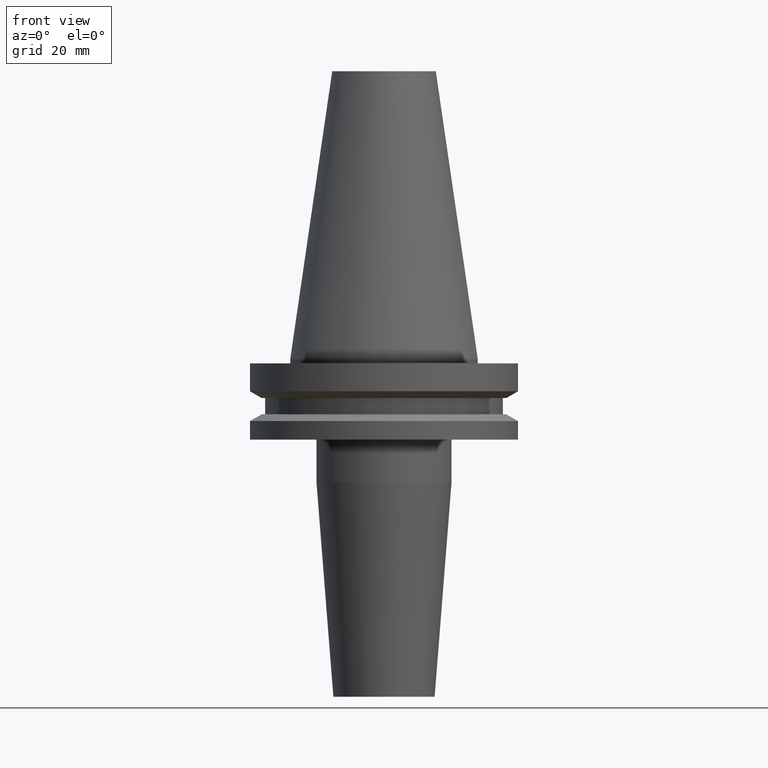
[diagram: clean part render]
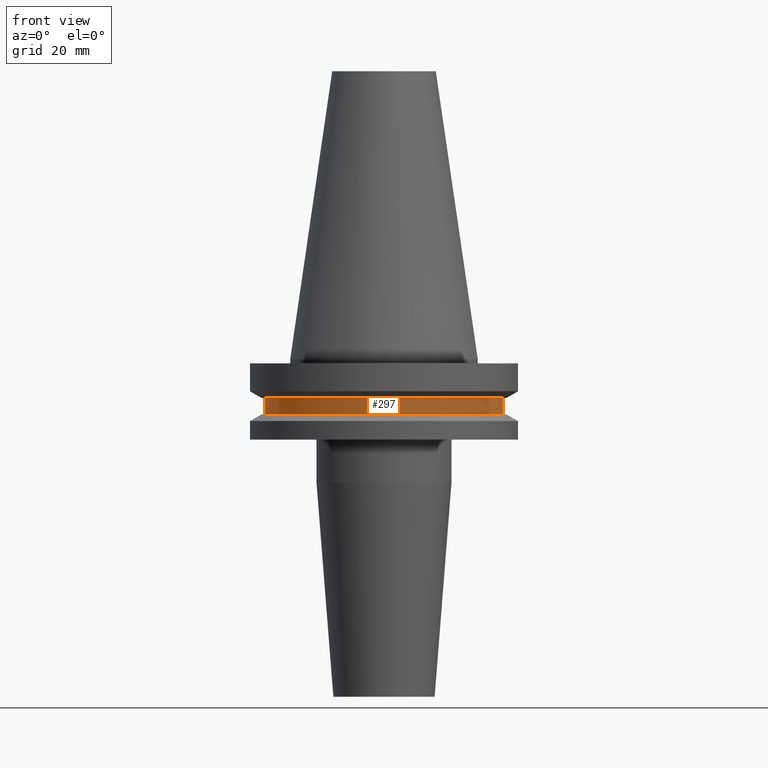
[diagram: same view with one face highlighted and labeled with its STEP entity id]
A machine part, front view. The second image highlights one B-rep face of the part: STEP entity #297.
In plain terms, the highlighted cylindrical surface (partial cylindrical patch) has radius 28.18 mm, axis along (-0, -0, 1).
Its self-contained STEP definition (entity closure, byte-faithful):
#11 = VECTOR ( 'NONE', #24, 1000.000000000000000 ) ;
#18 = EDGE_CURVE ( 'NONE', #686, #191, #608, .T. ) ;
#24 = DIRECTION ( 'NONE',  ( -0.000000000000000000, -0.000000000000000000, 1.000000000000000000 ) ) ;
#33 = CARTESIAN_POINT ( 'NONE',  ( -28.17999999999999972, 3.451054679997241634E-15, -13.05499999999999794 ) ) ;
#44 = FACE_OUTER_BOUND ( 'NONE', #72, .T. ) ;
#52 = ORIENTED_EDGE ( 'NONE', *, *, #341, .T. ) ;
#72 = EDGE_LOOP ( 'NONE', ( #751, #534, #52, #252 ) ) ;
#108 = VECTOR ( 'NONE', #596, 1000.000000000000000 ) ;
#120 = DIRECTION ( 'NONE',  ( -0.000000000000000000, -0.000000000000000000, 1.000000000000000000 ) ) ;
#191 = VERTEX_POINT ( 'NONE', #512 ) ;
#197 = CARTESIAN_POINT ( 'NONE',  ( 0.000000000000000000, 0.000000000000000000, -9.204999999999991189 ) ) ;
#203 = VERTEX_POINT ( 'NONE', #33 ) ;
#213 = DIRECTION ( 'NONE',  ( 1.000000000000000000, 0.000000000000000000, 0.000000000000000000 ) ) ;
#237 = CYLINDRICAL_SURFACE ( 'NONE', #694, 28.17999999999999972 ) ;
#252 = ORIENTED_EDGE ( 'NONE', *, *, #18, .F. ) ;
#257 = CARTESIAN_POINT ( 'NONE',  ( 0.000000000000000000, 0.000000000000000000, 68.25000000000000000 ) ) ;
#279 = DIRECTION ( 'NONE',  ( -0.000000000000000000, -0.000000000000000000, 1.000000000000000000 ) ) ;
#297 = ADVANCED_FACE ( 'NONE', ( #44 ), #237, .T. ) ;
#341 = EDGE_CURVE ( 'NONE', #406, #191, #482, .T. ) ;
#356 = CARTESIAN_POINT ( 'NONE',  ( 28.17999999999999972, 0.000000000000000000, 68.25000000000000000 ) ) ;
#372 = CARTESIAN_POINT ( 'NONE',  ( 0.000000000000000000, 0.000000000000000000, -13.05499999999999794 ) ) ;
#406 = VERTEX_POINT ( 'NONE', #550 ) ;
#471 = EDGE_CURVE ( 'NONE', #203, #686, #725, .T. ) ;
#478 = EDGE_CURVE ( 'NONE', #203, #406, #480, .T. ) ;
#480 = CIRCLE ( 'NONE', #678, 28.17999999999999972 ) ;
#482 = LINE ( 'NONE', #356, #108 ) ;
#483 = AXIS2_PLACEMENT_3D ( 'NONE', #197, #661, #548 ) ;
#489 = DIRECTION ( 'NONE',  ( 1.000000000000000000, 0.000000000000000000, 0.000000000000000000 ) ) ;
#512 = CARTESIAN_POINT ( 'NONE',  ( 28.17999999999999972, 0.000000000000000000, -9.204999999999991189 ) ) ;
#534 = ORIENTED_EDGE ( 'NONE', *, *, #478, .T. ) ;
#545 = CARTESIAN_POINT ( 'NONE',  ( -28.17999999999999972, 3.451054679997241634E-15, -9.204999999999991189 ) ) ;
#548 = DIRECTION ( 'NONE',  ( 1.000000000000000000, 0.000000000000000000, 0.000000000000000000 ) ) ;
#550 = CARTESIAN_POINT ( 'NONE',  ( 28.17999999999999972, 0.000000000000000000, -13.05499999999999794 ) ) ;
#561 = CARTESIAN_POINT ( 'NONE',  ( -28.17999999999999972, 3.451054679997241634E-15, 68.25000000000000000 ) ) ;
#596 = DIRECTION ( 'NONE',  ( -0.000000000000000000, -0.000000000000000000, 1.000000000000000000 ) ) ;
#608 = CIRCLE ( 'NONE', #483, 28.17999999999999972 ) ;
#661 = DIRECTION ( 'NONE',  ( -0.000000000000000000, -0.000000000000000000, 1.000000000000000000 ) ) ;
#678 = AXIS2_PLACEMENT_3D ( 'NONE', #372, #279, #213 ) ;
#686 = VERTEX_POINT ( 'NONE', #545 ) ;
#694 = AXIS2_PLACEMENT_3D ( 'NONE', #257, #120, #489 ) ;
#725 = LINE ( 'NONE', #561, #11 ) ;
#751 = ORIENTED_EDGE ( 'NONE', *, *, #471, .F. ) ;